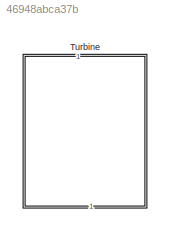
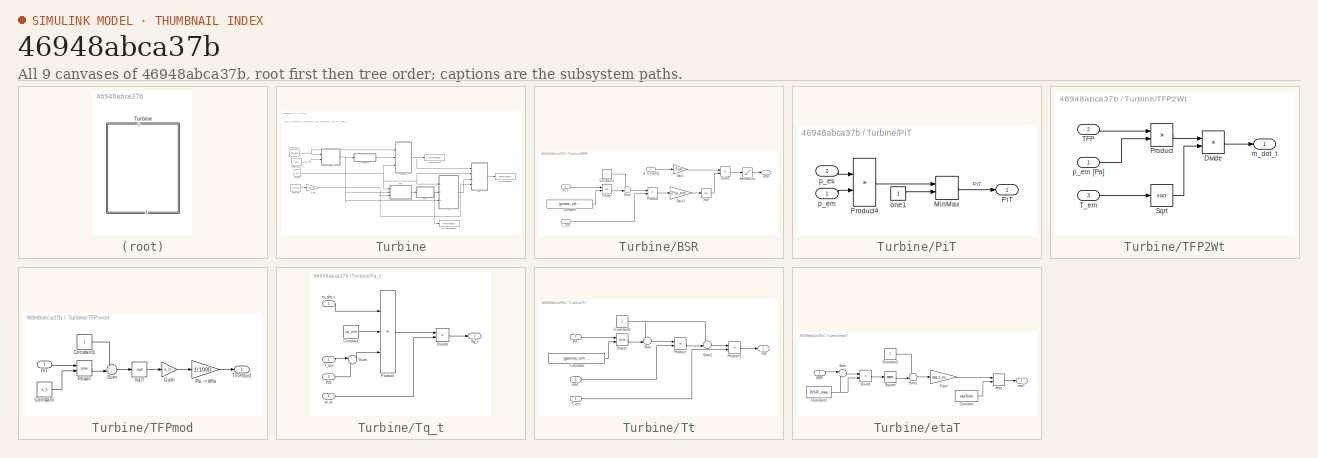
[diagram: thumbnail index - all 9 canvases of the model, root first then tree order]
MODEL slx_46948abca37b
KIND model
CONFIG AbsTol = auto
CONFIG EnableMultiTasking = off
CONFIG FixedStep = auto
CONFIG MaxStep = auto
CONFIG MinStep = auto
CONFIG RelTol = 1e-3
CONFIG SampleTimeConstraint = Unconstrained
CONFIG Solver = VariableStepAuto
CONFIG SolverName = VariableStepAuto
CONFIG StartTime = 0.0
CONFIG StopTime = 10.0
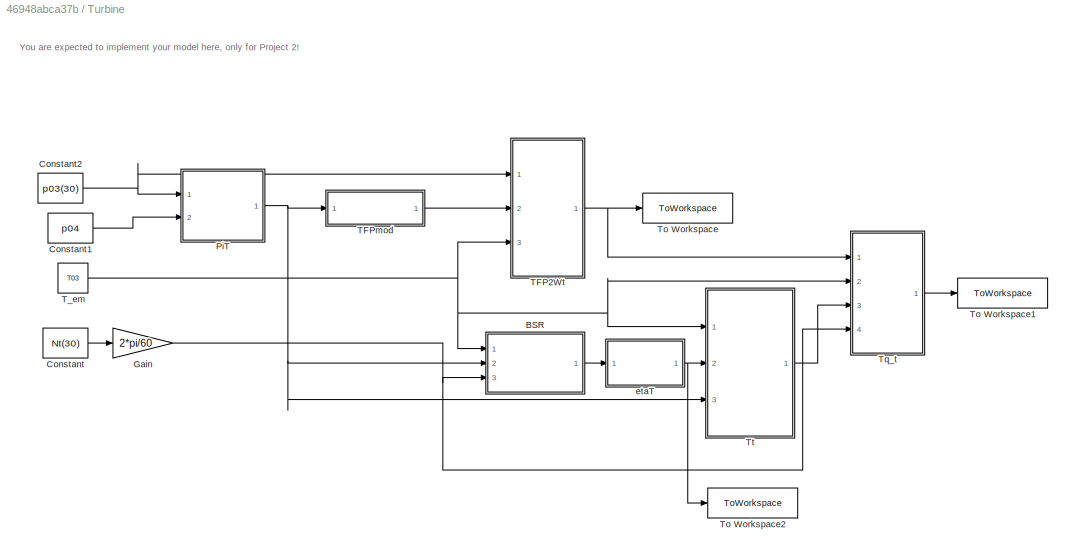
BLOCK [SubSystem] Turbine
  NameLocation = right
  Ports = []
  RequestExecContextInheritance = off
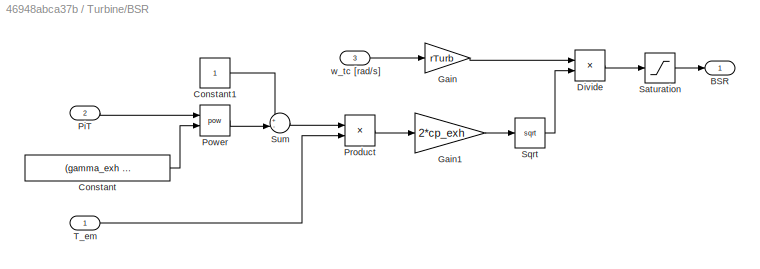
BLOCK [SubSystem] Turbine/BSR
  Ports = [3, 1]
  RequestExecContextInheritance = off
BLOCK [Outport] Turbine/BSR/BSR
BLOCK [Constant] Turbine/BSR/Constant
  Value = (gamma_exh - 1) / gamma_exh
BLOCK [Constant] Turbine/BSR/Constant1
BLOCK [Product] Turbine/BSR/Divide
  Inputs = */
  Ports = [2, 1]
BLOCK [Gain] Turbine/BSR/Gain
  Gain = rTurb
BLOCK [Gain] Turbine/BSR/Gain1
  Gain = 2*cp_exh
BLOCK [Inport] Turbine/BSR/PiT
  Port = 2
BLOCK [Math] Turbine/BSR/Power
  Operator = pow
  Ports = [2, 1]
BLOCK [Product] Turbine/BSR/Product
  Ports = [2, 1]
BLOCK [Saturate] Turbine/BSR/Saturation
  LowerLimit = 0.1
  UpperLimit = 1
BLOCK [Sqrt] Turbine/BSR/Sqrt
BLOCK [Sum] Turbine/BSR/Sum
  Inputs = +-|
  Ports = [2, 1]
BLOCK [Inport] Turbine/BSR/T_em
BLOCK [Inport] Turbine/BSR/w_tc [rad//s]
  Port = 3
BLOCK [Constant] Turbine/Constant
  Value = Nt(30)
BLOCK [Constant] Turbine/Constant1
  Value = p04
BLOCK [Constant] Turbine/Constant2
  Value = p03(30)
BLOCK [Gain] Turbine/Gain
  Gain = 2*pi/60
BLOCK [SubSystem] Turbine/PiT
  Ports = [2, 1]
  RequestExecContextInheritance = off
BLOCK [MinMax] Turbine/PiT/MinMax
  Inputs = 2
  Ports = [2, 1]
BLOCK [Outport] Turbine/PiT/PiT
BLOCK [Product] Turbine/PiT/Product4
  Inputs = */
  Ports = [2, 1]
  RndMeth = Zero
BLOCK [Constant] Turbine/PiT/one1
BLOCK [Inport] Turbine/PiT/p_em
BLOCK [Inport] Turbine/PiT/p_es
  Port = 2
BLOCK [SubSystem] Turbine/TFP2Wt
  Ports = [3, 1]
  RequestExecContextInheritance = off
BLOCK [Product] Turbine/TFP2Wt/Divide
  Inputs = */
  Ports = [2, 1]
BLOCK [Product] Turbine/TFP2Wt/Product
  Ports = [2, 1]
BLOCK [Sqrt] Turbine/TFP2Wt/Sqrt
BLOCK [Inport] Turbine/TFP2Wt/TFP
  Port = 2
BLOCK [Inport] Turbine/TFP2Wt/T_em
  Port = 3
BLOCK [Outport] Turbine/TFP2Wt/m_dot_t
BLOCK [Inport] Turbine/TFP2Wt/p_em [Pa]
BLOCK [SubSystem] Turbine/TFPmod
  Ports = [1, 1]
  RequestExecContextInheritance = off
BLOCK [Constant] Turbine/TFPmod/Constant
  Value = k_1
BLOCK [Constant] Turbine/TFPmod/Constant1
BLOCK [Gain] Turbine/TFPmod/Gain
  Gain = k_0
BLOCK [Gain] Turbine/TFPmod/Pa -> kPa
  Gain = 1/1000
BLOCK [Inport] Turbine/TFPmod/PiT
BLOCK [Math] Turbine/TFPmod/Power
  Operator = pow
  Ports = [2, 1]
BLOCK [Sqrt] Turbine/TFPmod/Sqrt
BLOCK [Sum] Turbine/TFPmod/Sum
  Inputs = +-|
  Ports = [2, 1]
BLOCK [Outport] Turbine/TFPmod/TFPmod
BLOCK [Constant] Turbine/T_em
  Value = T03
BLOCK [ToWorkspace] Turbine/To Workspace
  FixptAsFi = on
  MaxDataPoints = inf
  Ports = [1]
  SampleTime = -1
  VariableName = m_dot_t_sim
BLOCK [ToWorkspace] Turbine/To Workspace1
  FixptAsFi = on
  MaxDataPoints = inf
  Ports = [1]
  SampleTime = -1
  VariableName = Tq_t_sim
BLOCK [ToWorkspace] Turbine/To Workspace2
  FixptAsFi = on
  MaxDataPoints = inf
  Ports = [1]
  SampleTime = -1
  VariableName = etaT_sim
BLOCK [SubSystem] Turbine/Tq_t
  Ports = [4, 1]
  RequestExecContextInheritance = off
BLOCK [Constant] Turbine/Tq_t/Constant
  Value = cp_exh
BLOCK [Product] Turbine/Tq_t/Divide
  Inputs = */
  Ports = [2, 1]
BLOCK [Product] Turbine/Tq_t/Product
  Inputs = 3
  Ports = [3, 1]
BLOCK [Sum] Turbine/Tq_t/Sum
  Inputs = |+-
  Ports = [2, 1]
BLOCK [Inport] Turbine/Tq_t/T04
  Port = 3
BLOCK [Inport] Turbine/Tq_t/T_em
  Port = 2
BLOCK [Outport] Turbine/Tq_t/Tq_t
BLOCK [Inport] Turbine/Tq_t/m_dot_t
BLOCK [Inport] Turbine/Tq_t/w_tc
  Port = 4
BLOCK [SubSystem] Turbine/Tt
  Ports = [3, 1]
  RequestExecContextInheritance = off
BLOCK [Constant] Turbine/Tt/Constant
  Value = (gamma_exh - 1) / gamma_exh
BLOCK [Constant] Turbine/Tt/Constant1
BLOCK [Inport] Turbine/Tt/PiT
  Port = 3
BLOCK [Math] Turbine/Tt/Power
  Operator = pow
  Ports = [2, 1]
BLOCK [Product] Turbine/Tt/Product
  Ports = [2, 1]
BLOCK [Product] Turbine/Tt/Product1
  Ports = [2, 1]
BLOCK [Sum] Turbine/Tt/Sum
  Inputs = +-|
  Ports = [2, 1]
BLOCK [Sum] Turbine/Tt/Sum1
  Inputs = +-|
  Ports = [2, 1]
BLOCK [Outport] Turbine/Tt/T04
BLOCK [Inport] Turbine/Tt/T_em
BLOCK [Inport] Turbine/Tt/etaT
  Port = 2
BLOCK [SubSystem] Turbine/etaT
  Ports = [1, 1]
  RequestExecContextInheritance = off
BLOCK [Inport] Turbine/etaT/BSR
BLOCK [Constant] Turbine/etaT/Constant
  Value = etaTmin
BLOCK [Constant] Turbine/etaT/Constant1
  Value = BSR_max
BLOCK [Constant] Turbine/etaT/Constant2
BLOCK [Product] Turbine/etaT/Divide
  Inputs = */
  Ports = [2, 1]
BLOCK [Gain] Turbine/etaT/Gain
  Gain = eta_t_max
BLOCK [MinMax] Turbine/etaT/Max
  Function = max
  Inputs = 2
  Ports = [2, 1]
BLOCK [Math] Turbine/etaT/Square
  Operator = square
  Ports = [1, 1]
BLOCK [Sum] Turbine/etaT/Sum
  Inputs = |+-
  Ports = [2, 1]
BLOCK [Sum] Turbine/etaT/Sum1
  Inputs = +-|
  Ports = [2, 1]
BLOCK [Outport] Turbine/etaT/etaT
ANNOTATION Turbine: You are expected to implement your model here, only for Project 2!
LINE Turbine/BSR/Constant1:1 -> Turbine/BSR/Sum:1
LINE Turbine/BSR/Constant:1 -> Turbine/BSR/Power:2
LINE Turbine/BSR/Divide:1 -> Turbine/BSR/Saturation:1
LINE Turbine/BSR/Gain1:1 -> Turbine/BSR/Sqrt:1
LINE Turbine/BSR/Gain:1 -> Turbine/BSR/Divide:1
LINE Turbine/BSR/PiT:1 -> Turbine/BSR/Power:1
LINE Turbine/BSR/Power:1 -> Turbine/BSR/Sum:2
LINE Turbine/BSR/Product:1 -> Turbine/BSR/Gain1:1
LINE Turbine/BSR/Saturation:1 -> Turbine/BSR/BSR:1
LINE Turbine/BSR/Sqrt:1 -> Turbine/BSR/Divide:2
LINE Turbine/BSR/Sum:1 -> Turbine/BSR/Product:1
LINE Turbine/BSR/T_em:1 -> Turbine/BSR/Product:2
LINE Turbine/BSR/w_tc [rad//s]:1 -> Turbine/BSR/Gain:1
LINE Turbine/BSR:1 -> Turbine/etaT:1
LINE Turbine/Constant1:1 -> Turbine/PiT:2
NET Turbine/Constant2:1 -> Turbine/PiT:1, Turbine/TFP2Wt:1
LINE Turbine/Constant:1 -> Turbine/Gain:1
NET Turbine/Gain:1 -> Turbine/BSR:3, Turbine/Tq_t:4
LINE Turbine/PiT/MinMax:1 -> Turbine/PiT/PiT:1
LINE Turbine/PiT/Product4:1 -> Turbine/PiT/MinMax:1
LINE Turbine/PiT/one1:1 -> Turbine/PiT/MinMax:2
LINE Turbine/PiT/p_em:1 -> Turbine/PiT/Product4:2
LINE Turbine/PiT/p_es:1 -> Turbine/PiT/Product4:1
NET Turbine/PiT:1 -> Turbine/BSR:2, Turbine/TFPmod:1, Turbine/Tt:3
LINE Turbine/TFP2Wt/Divide:1 -> Turbine/TFP2Wt/m_dot_t:1
LINE Turbine/TFP2Wt/Product:1 -> Turbine/TFP2Wt/Divide:1
LINE Turbine/TFP2Wt/Sqrt:1 -> Turbine/TFP2Wt/Divide:2
LINE Turbine/TFP2Wt/TFP:1 -> Turbine/TFP2Wt/Product:1
LINE Turbine/TFP2Wt/T_em:1 -> Turbine/TFP2Wt/Sqrt:1
LINE Turbine/TFP2Wt/p_em [Pa]:1 -> Turbine/TFP2Wt/Product:2
NET Turbine/TFP2Wt:1 -> Turbine/To Workspace:1, Turbine/Tq_t:1
LINE Turbine/TFPmod/Constant1:1 -> Turbine/TFPmod/Sum:1
LINE Turbine/TFPmod/Constant:1 -> Turbine/TFPmod/Power:2
LINE Turbine/TFPmod/Gain:1 -> Turbine/TFPmod/Pa -> kPa:1
LINE Turbine/TFPmod/Pa -> kPa:1 -> Turbine/TFPmod/TFPmod:1
LINE Turbine/TFPmod/PiT:1 -> Turbine/TFPmod/Power:1
LINE Turbine/TFPmod/Power:1 -> Turbine/TFPmod/Sum:2
LINE Turbine/TFPmod/Sqrt:1 -> Turbine/TFPmod/Gain:1
LINE Turbine/TFPmod/Sum:1 -> Turbine/TFPmod/Sqrt:1
LINE Turbine/TFPmod:1 -> Turbine/TFP2Wt:2
NET Turbine/T_em:1 -> Turbine/BSR:1, Turbine/TFP2Wt:3, Turbine/Tq_t:2, Turbine/Tt:1
LINE Turbine/Tq_t/Constant:1 -> Turbine/Tq_t/Product:2
LINE Turbine/Tq_t/Divide:1 -> Turbine/Tq_t/Tq_t:1
LINE Turbine/Tq_t/Product:1 -> Turbine/Tq_t/Divide:1
LINE Turbine/Tq_t/Sum:1 -> Turbine/Tq_t/Product:3
LINE Turbine/Tq_t/T04:1 -> Turbine/Tq_t/Sum:2
LINE Turbine/Tq_t/T_em:1 -> Turbine/Tq_t/Sum:1
LINE Turbine/Tq_t/m_dot_t:1 -> Turbine/Tq_t/Product:1
LINE Turbine/Tq_t/w_tc:1 -> Turbine/Tq_t/Divide:2
LINE Turbine/Tq_t:1 -> Turbine/To Workspace1:1
NET Turbine/Tt/Constant1:1 -> Turbine/Tt/Sum1:1, Turbine/Tt/Sum:1
LINE Turbine/Tt/Constant:1 -> Turbine/Tt/Power:2
LINE Turbine/Tt/PiT:1 -> Turbine/Tt/Power:1
LINE Turbine/Tt/Power:1 -> Turbine/Tt/Sum:2
LINE Turbine/Tt/Product1:1 -> Turbine/Tt/T04:1
LINE Turbine/Tt/Product:1 -> Turbine/Tt/Sum1:2
LINE Turbine/Tt/Sum1:1 -> Turbine/Tt/Product1:1
LINE Turbine/Tt/Sum:1 -> Turbine/Tt/Product:1
LINE Turbine/Tt/T_em:1 -> Turbine/Tt/Product1:2
LINE Turbine/Tt/etaT:1 -> Turbine/Tt/Product:2
LINE Turbine/Tt:1 -> Turbine/Tq_t:3
LINE Turbine/etaT/BSR:1 -> Turbine/etaT/Sum:1
NET Turbine/etaT/Constant1:1 -> Turbine/etaT/Divide:2, Turbine/etaT/Sum:2
LINE Turbine/etaT/Constant2:1 -> Turbine/etaT/Sum1:1
LINE Turbine/etaT/Constant:1 -> Turbine/etaT/Max:2
LINE Turbine/etaT/Divide:1 -> Turbine/etaT/Square:1
LINE Turbine/etaT/Gain:1 -> Turbine/etaT/Max:1
LINE Turbine/etaT/Max:1 -> Turbine/etaT/etaT:1
LINE Turbine/etaT/Square:1 -> Turbine/etaT/Sum1:2
LINE Turbine/etaT/Sum1:1 -> Turbine/etaT/Gain:1
LINE Turbine/etaT/Sum:1 -> Turbine/etaT/Divide:1
NET Turbine/etaT:1 -> Turbine/To Workspace2:1, Turbine/Tt:2
note: NET lines group one-source signal fan-out (src -> all destinations, sorted); 1:1 wires keep LINE
